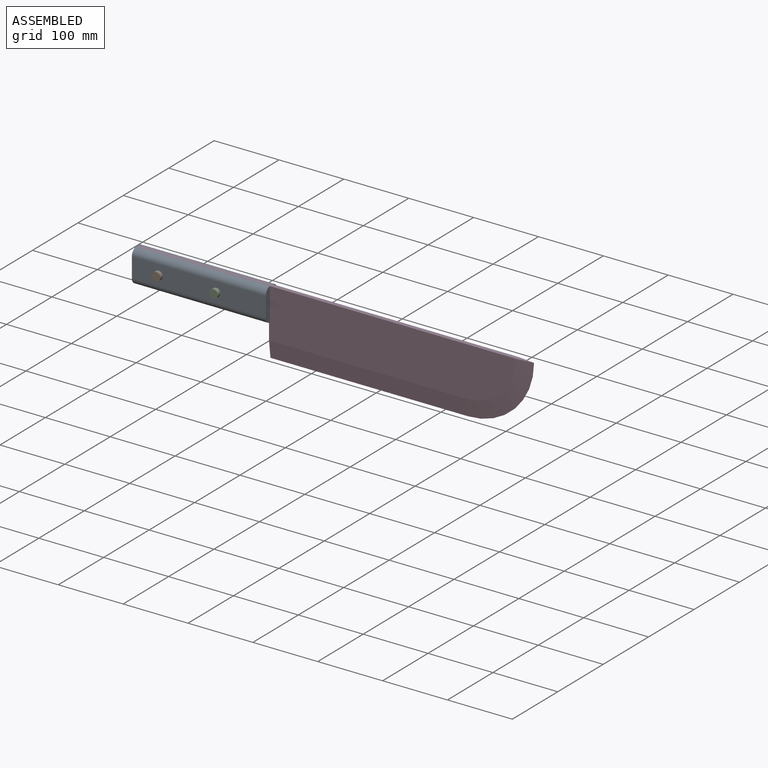
[diagram: assembled view]
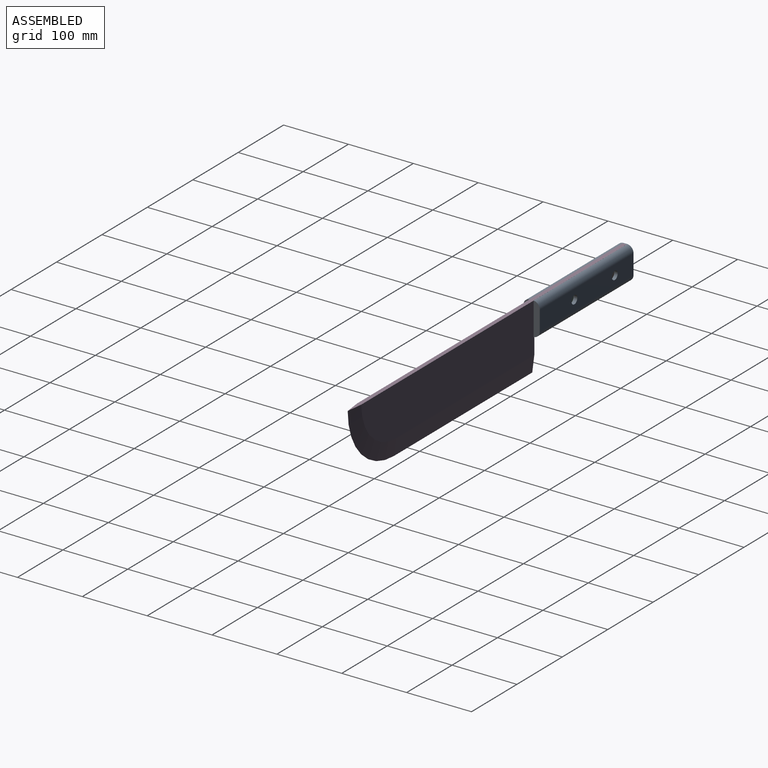
[diagram: assembled view, second angle]
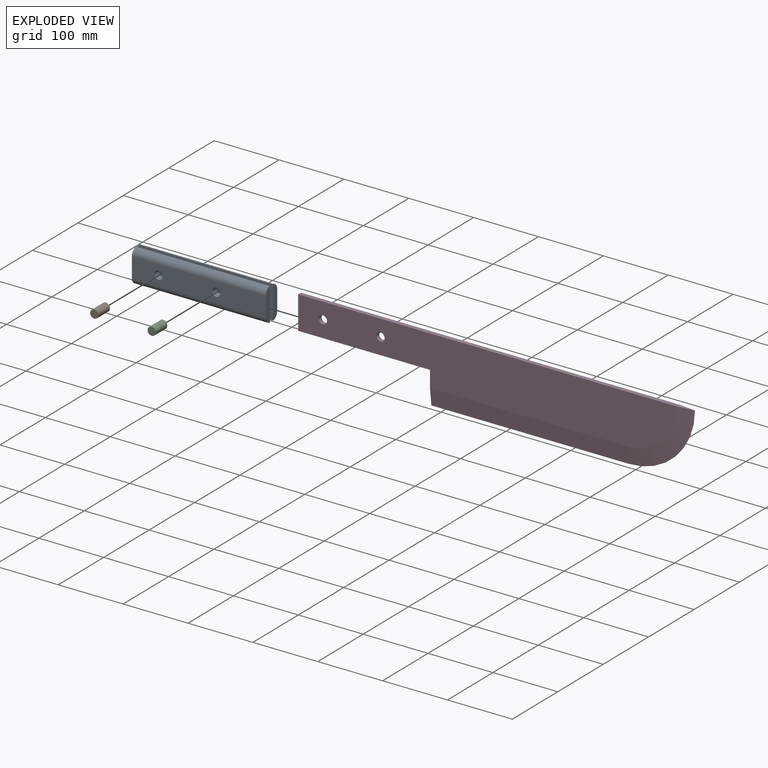
[diagram: exploded view]
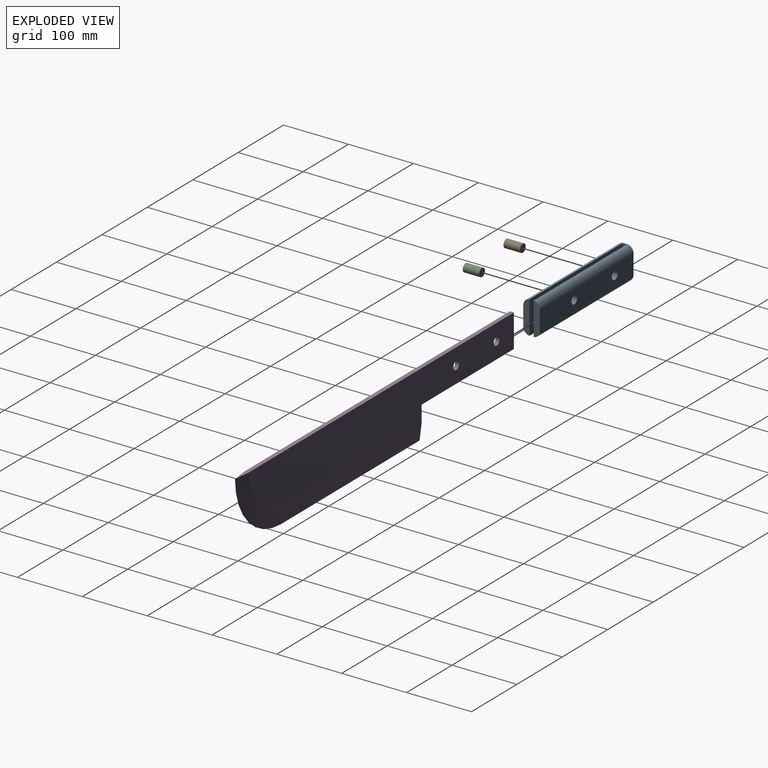
[diagram: exploded view, second angle]
ASSEMBLY  parts=4 mates=3
PART A: 18 faces, bbox 206.4x25.4x50.8 mm
  f0: plane 5.08x1.59mm, normal (0,0,-1), area 8.1mm2, adj f4,f9,f15,f17
  f1: plane 50.76x9.5mm, normal (1,0,0), area 438.3mm2, adj f5,f8,f16,f17
  f2: plane 50.76x9.5mm, normal (1,0,0), area 438.3mm2, adj f6,f7,f14,f15
  f3: plane 5.08x1.59mm, normal (0,0,1), area 8.1mm2, adj f4,f9,f14,f16
  f4: plane 50.8x25.4mm, normal (-1,0,0), area 1201.7mm2, adj f0,f3,f5,f6,f14,f15,f16,f17
  f5: plane 206.38x30.48mm, normal (0,-1,0), area 6037mm2, adj f1,f4,f10,f11,f16,f17
  f6: plane 206.38x30.48mm, normal (0,1,0), area 6037mm2, adj f2,f4,f12,f13,f14,f15
  f7: plane 204.79x50.76mm, normal (0,-1,0), area 10141.1mm2, adj f2,f9,f12,f13,f14,f15
  f8: plane 204.79x50.76mm, normal (0,1,0), area 10141.1mm2, adj f1,f9,f10,f11,f16,f17
  f9: plane 50.8x6.4mm, normal (1,0,0), area 325.1mm2, adj f0,f3,f7,f8,f14,f15,f16,f17
  f10: cylinder r=6.35mm len=12.7mm, axis (0,-1,0), area 379mm2, adj f5,f8
  f11: cylinder r=6.35mm len=12.7mm, axis (0,-1,0), area 379mm2, adj f5,f8
  f12: cylinder r=6.35mm len=12.7mm, axis (0,-1,0), area 379mm2, adj f6,f7
  f13: cylinder r=6.35mm len=12.7mm, axis (0,-1,0), area 379mm2, adj f6,f7
  f14: cylinder r=10.16mm len=206.38mm, axis (-1,0,0), area 3158.3mm2, adj f2,f3,f4,f6,f7,f9
  f15: cylinder r=10.16mm len=206.38mm, axis (1,0,0), area 3158.3mm2, adj f0,f2,f4,f6,f7,f9
  f16: cylinder r=10.16mm len=206.38mm, axis (1,0,0), area 3158.3mm2, adj f1,f3,f4,f5,f8,f9
  f17: cylinder r=10.16mm len=206.38mm, axis (-1,0,0), area 3158.3mm2, adj f0,f1,f4,f5,f8,f9
PART B: 3 faces, bbox 12.7x25.4x12.7 mm
  f0: cylinder r=6.35mm len=25.4mm, axis (0,1,0), area 1013.4mm2, adj f1,f2
  f1: plane 12.7x12.7mm, normal (0,-1,0), area 126.7mm2, adj f0
  f2: plane 12.7x12.7mm, normal (0,1,0), area 126.7mm2, adj f0
PART C: same geometry as B
PART D: 12 faces, bbox 609.6x6.4x101.6 mm
  f0: plane 584.2x76.2mm, normal (0,-1,0), area 37855.3mm2, adj f1,f2,f3,f4,f8,f9,f10,f11
  f1: plane 609.6x6.35mm, normal (0,0,1), area 3790.3mm2, adj f0,f2,f5,f7,f9
  f2: plane 50.8x6.35mm, normal (-1,0,0), area 322.6mm2, adj f0,f1,f3,f5
  f3: plane 203.2x6.35mm, normal (0,0,-1), area 1290.3mm2, adj f0,f2,f4,f5
  f4: plane 50.8x6.35mm, normal (-1,0,0), area 241.9mm2, adj f0,f3,f5,f6,f8
  f5: plane 584.2x76.2mm, normal (0,1,0), area 37855.3mm2, adj f1,f2,f3,f4,f6,f7,f10,f11
  f6: plane 304.8x25.4mm, normal (0,0.99,-0.12), area 7802.2mm2, adj f4,f5,f7,f8
  f7: cone r=50.8mm half-angle=82.9deg, axis (0,-1,0), area 3574.6mm2, adj f1,f5,f6,f9
  f8: plane 304.8x25.4mm, normal (0,-0.99,-0.12), area 7802.2mm2, adj f0,f4,f6,f9
  f9: cone r=101.6mm half-angle=82.9deg, axis (0,1,0), area 3574.6mm2, adj f0,f1,f7,f8
  f10: cylinder r=6.35mm len=12.7mm, axis (0,-1,0), area 253.4mm2, adj f0,f5
  f11: cylinder r=6.35mm len=12.7mm, axis (0,-1,0), area 253.4mm2, adj f0,f5
PLACE A t=(-259.66,-7.07,-5.97)mm
PLACE B t=(-321.57,0.37,-5.97)mm
PLACE C t=(-232.67,-0.16,-5.97)mm
PLACE D t=(-158.06,-7.07,-31.37)mm
MATE fastened D.f2 <-> A.f9  axis (-1,0,0) through (-361.26,-7.07,-5.97)mm
MATE slider B.f0 <-> A.f10  axis (0,-1,0) through (-321.57,-25.03,-5.97)mm
MATE slider C.f0 <-> A.f11  axis (0,-1,0) through (-232.67,-25.56,-5.97)mm
